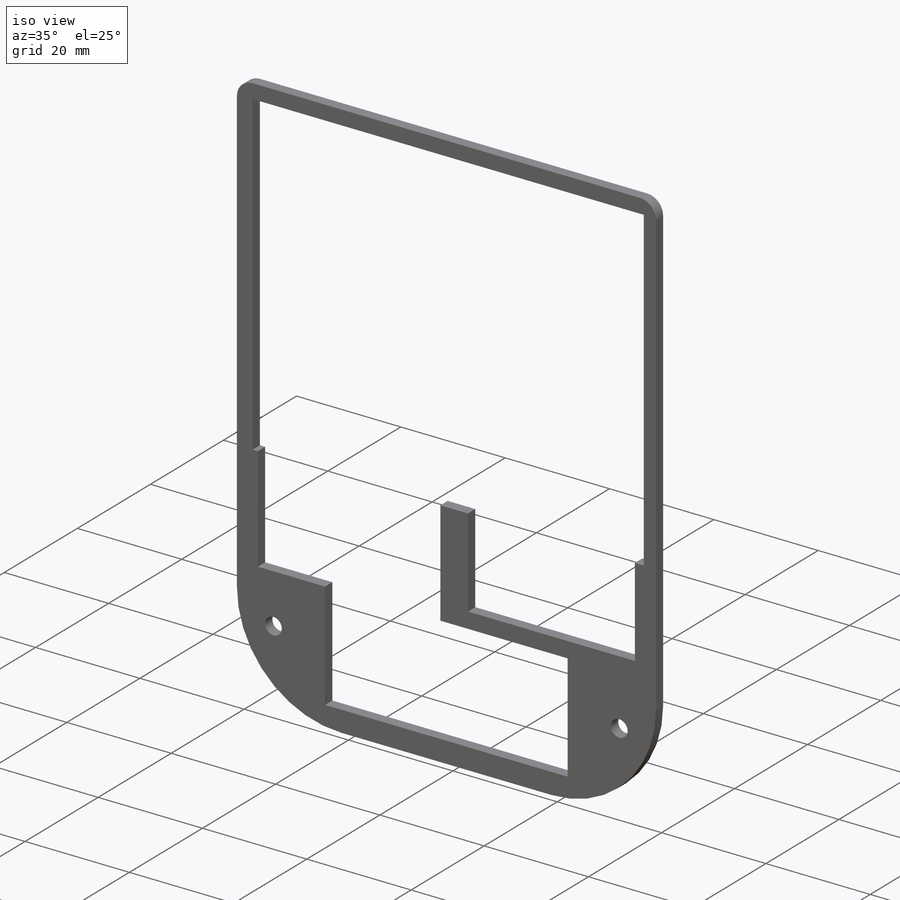
[diagram: iso view]
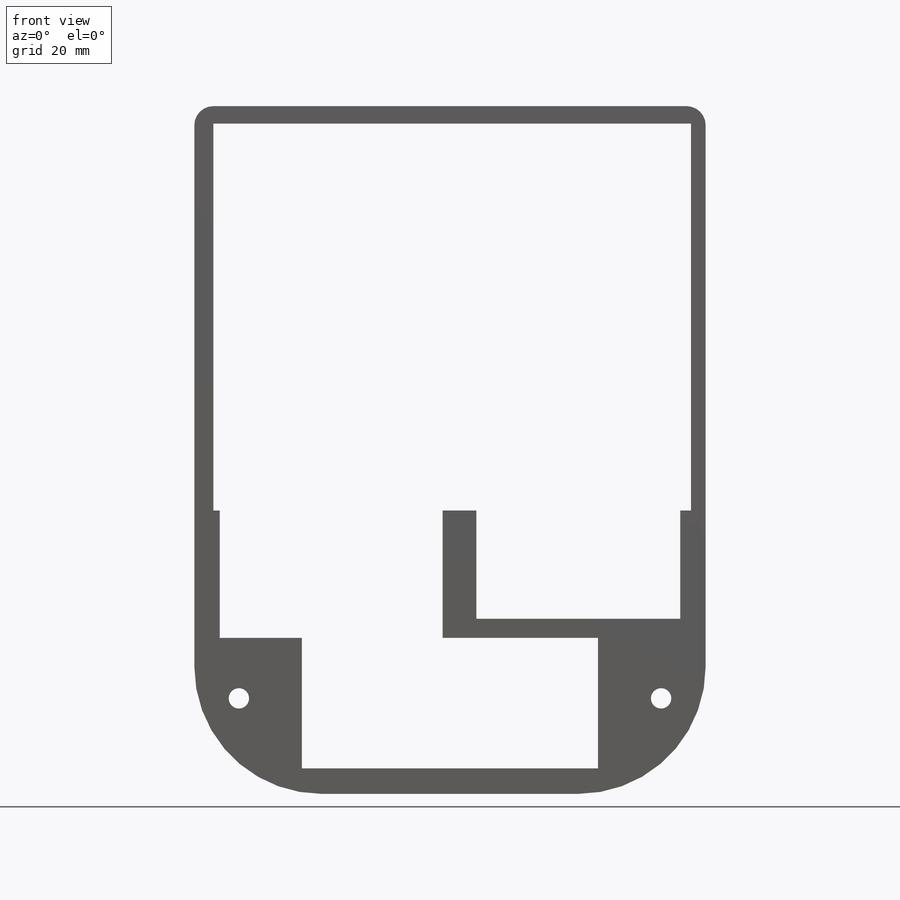
[diagram: front view]
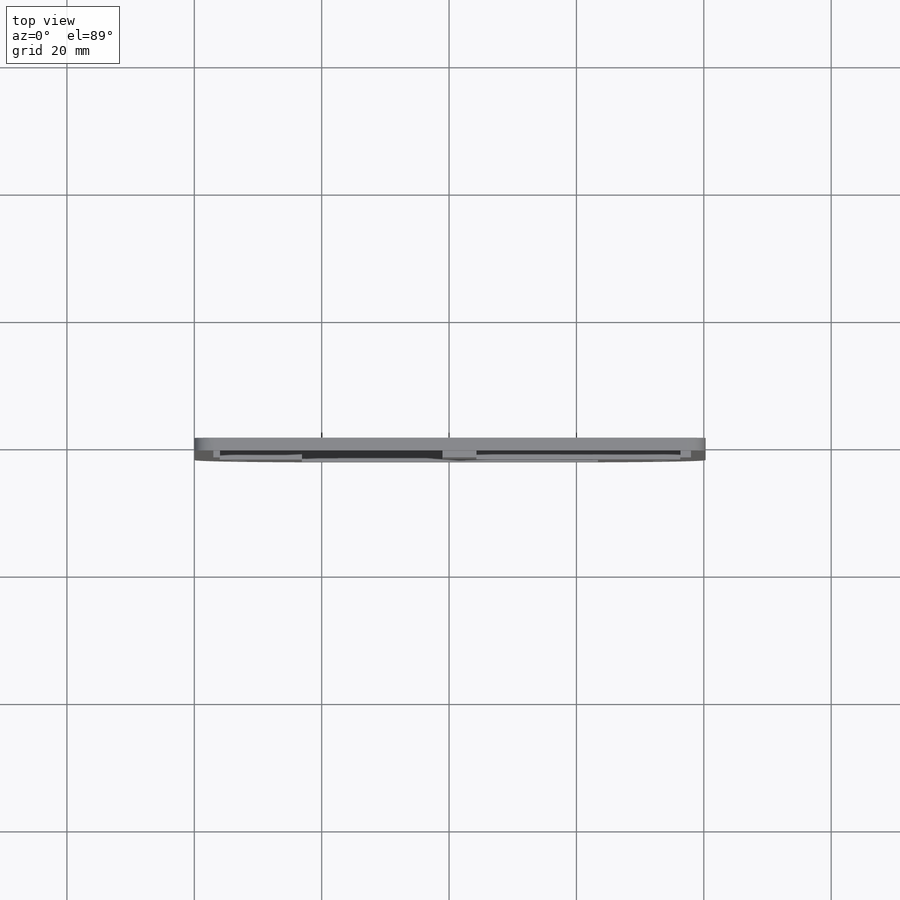
[diagram: top view]
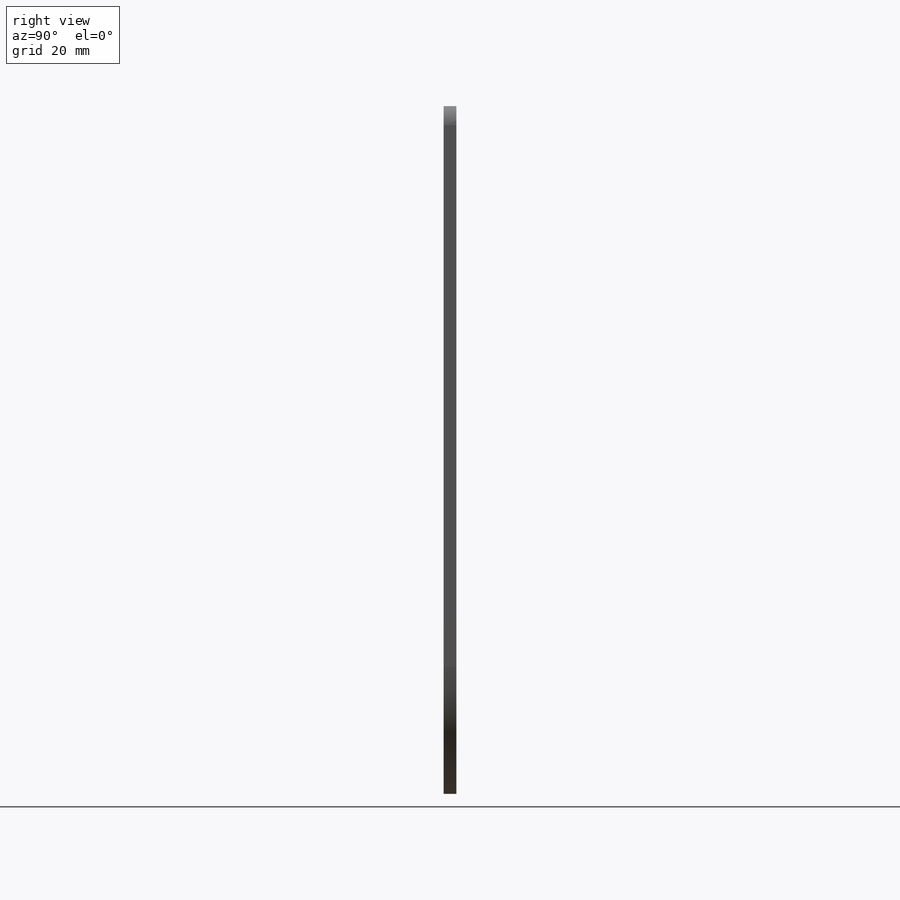
[diagram: right view]
SOLIDWORKS PART (.sldprt)
format: sldprt  version: not decoded by parser v0  size: 637,952 bytes
history: native  units: mm
features: sketch x9, cut_extrude x3, extrude x2, hole x2, fillet x2, material x1 (+12 scaffold rows collapsed)
feature tree (31):
  scaffold x12  (default folders/planes/origin — collapsed)
  material  "Acrylic (Medium-high impact)"
  sketch  "Sketch1"  dims[D1=80.3mm D2=66.0mm]
  extrude  "Boss-Extrude1"  Depth=2mm
  hole  "Ø3.2 (3.2) Diameter Hole1"  Diameter=3.2mm Depth=2mm
  sketch  "Sketch3"  dims[D1=66.3mm D2=52.0mm D3=26.0mm D4=33.15mm]
  sketch  "Sketch2"  dims[hole-wizard template sketch: 61 standard entries collapsed; hole parameters above]
  fillet  "Fillet1"  Radius=3mm
  sketch  "Sketch4"  dims[D1=0.0mm]
  extrude  "Boss-Extrude2"  Depth=42mm
  fillet  "Fillet2"  Radius=20mm
  hole  "Ø3.2 (3.2) Diameter Hole2"  Diameter=3.2mm Depth=60mm
  sketch  "Sketch6"  dims[D1=15.0mm D2=7.0mm]
  sketch  "Sketch5"  dims[hole-wizard template sketch: 50 standard entries collapsed; hole parameters above]
  sketch  "Sketch7"  dims[D1=75.0mm D2=60.5mm D3=4.0mm]
  cut_extrude  "Cut-Extrude1"  [1 undecoded]
  sketch  "Sketch10"  dims[c1.D1=32.0mm c1.D2=17.0mm c1.D3=35.0mm c1.D4=20.0mm c1.D5=20.5mm c1.D6=46.5mm c1.D7=7.5mm c1.D8=4.0mm c1.D9=4.0mm c2.D7=63.5mm]
  cut_extrude  "Cut-Extrude3"  [1 undecoded]
  sketch  "Sketch11"
  cut_extrude  "Cut-Extrude4"  [1 undecoded]
decode coverage: 14 of 18 modeling features carry decoded parameters
note: ~ marks probable driven/reference dimensions
note: 3 parameter values undecoded
summary: no parameter record found for 3 features
note: suppression state not decoded; provenance and decode notes live in map.json
